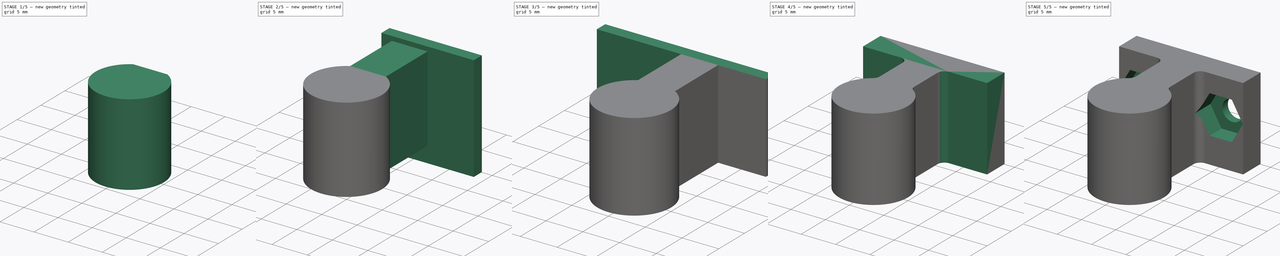
[diagram: build sequence overview — one tinted view per stage of 5, left to right]
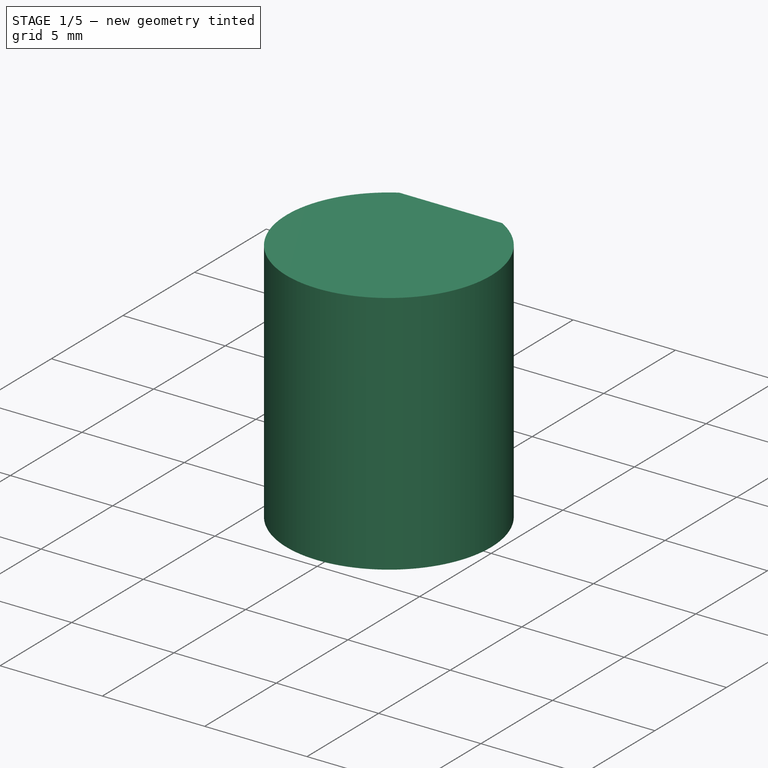
[diagram: stage 1 of 5 — iso view after this stage's code; geometry added in this stage tinted green]
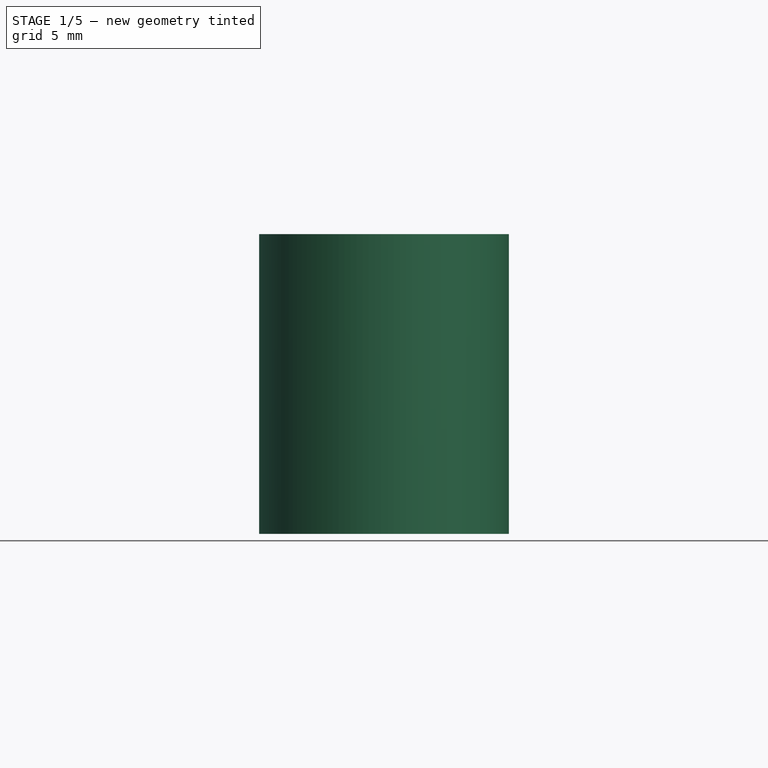
[diagram: stage 1 of 5 — front view after this stage's code; geometry added in this stage tinted green]
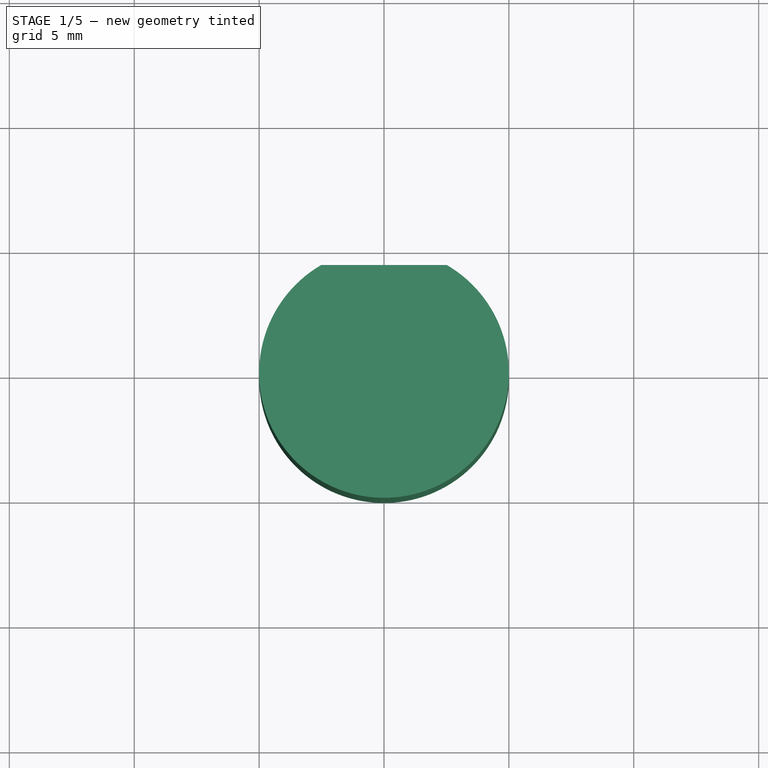
[diagram: stage 1 of 5 — top view after this stage's code; geometry added in this stage tinted green]
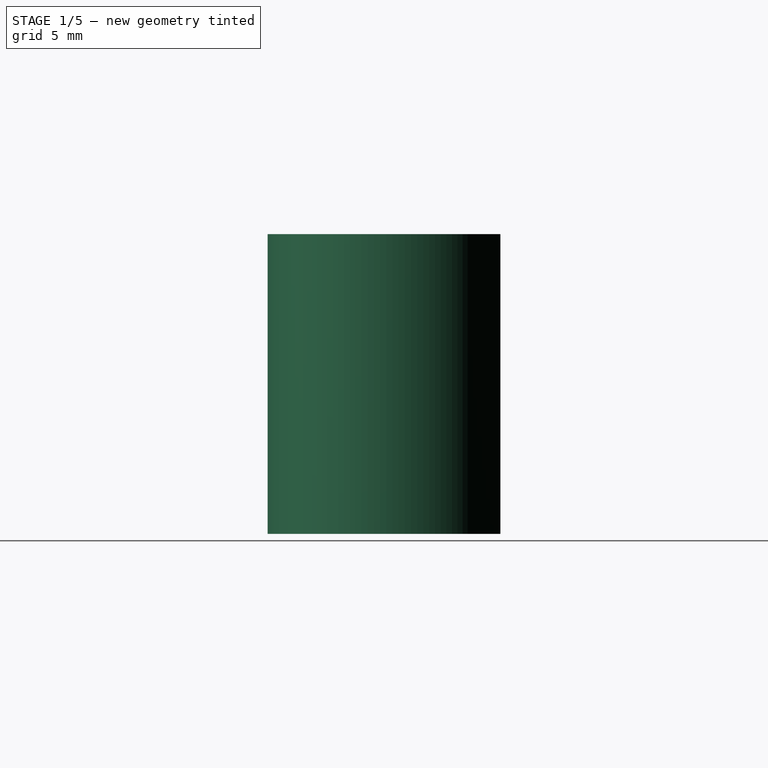
[diagram: stage 1 of 5 — right view after this stage's code; geometry added in this stage tinted green]
FCSTD DOCUMENT  (FreeCAD 2024.2R37179 (Git))
Label: handle_cap
License: All rights reserved
LicenseURL: http://en.wikipedia.org/wiki/All_rights_reserved
objects: PartDesign::Pad×7, PartDesign::Pocket×7, Sketcher::SketchObject×6, PartDesign::Fillet×1, PartDesign::Body×1
note: 37 computed .brp shape members not serialized (recipe doc carries the construction recipe); baked Part::Feature solids carry a one-line shape summary decoded from their .brp

FEATURE [Sketcher::SketchObject] Sketch001
  AttachmentSupport = -> [XY_Plane001]
  FullyConstrained = true
  MapMode = 5
  sketch-geometry (2):
    g0: Circle CenterX=0 CenterY=0 CenterZ=0 NormalX=0 NormalY=0 NormalZ=1 AngleXU=0 Radius=4.05
    g1: Circle CenterX=0 CenterY=0 CenterZ=0 NormalX=0 NormalY=0 NormalZ=1 AngleXU=0 Radius=5
  constraints (4):
    c: Coincident(g0,g-1)
    c: Diameter(g0) = 8.1
    c: Radius(g1) = 5
    c: Coincident(g1,g0)
FEATURE [PartDesign::Pad] Pad001
  Direction = (0,0,1)
  Length = 10
  Length2 = 10
  Profile = -> Sketch001
  ReferenceAxis = -> Sketch001 [N_Axis]
  Refine = true
  Suppressed = false
  Type = 0
FEATURE [Sketcher::SketchObject] Sketch002
  AttachmentSupport = -> [Pad001]
  FullyConstrained = true
  MapMode = 5
  Placement = pos=(0,0,10) rot=(0,0,1;0rad)
  sketch-geometry (1):
    g0: Circle CenterX=0 CenterY=0 CenterZ=0 NormalX=0 NormalY=0 NormalZ=1 AngleXU=0 Radius=5
  constraints (2):
    c: Radius(g0) = 5
    c: Coincident(g0,g-1)
FEATURE [PartDesign::Pad] Pad002
  BaseFeature = -> Pad001
  Direction = (0,0,1)
  Length = 2
  Length2 = 10
  Profile = -> Sketch002
  ReferenceAxis = -> Sketch002 [N_Axis]
  Refine = true
  Suppressed = false
  Type = 0
FEATURE [Sketcher::SketchObject] Sketch003
  AttachmentSupport = -> [Pad002]
  FullyConstrained = false
  MapMode = 5
  Placement = pos=(0,0,12) rot=(0,0,1;0rad)
  sketch-geometry (4):
    g0: LineSegment StartX=-5.86183 StartY=7.45466 StartZ=0 EndX=-5.86183 EndY=4.32045 EndZ=0
    g1: LineSegment StartX=-5.86183 StartY=4.32045 StartZ=0 EndX=7.29593 EndY=4.32045 EndZ=0
    g2: LineSegment StartX=7.29593 StartY=4.32045 StartZ=0 EndX=7.29593 EndY=7.45466 EndZ=0
    g3: LineSegment StartX=7.29593 StartY=7.45466 StartZ=0 EndX=-5.86183 EndY=7.45466 EndZ=0
  constraints (8):
    c: Coincident(g0,g1)
    c: Coincident(g1,g2)
    c: Coincident(g2,g3)
    c: Coincident(g3,g0)
    c: Vertical(g0)
    c: Vertical(g2)
    c: Horizontal(g1)
    c: Horizontal(g3)
FEATURE [PartDesign::Pocket] Pocket
  BaseFeature = -> Pad002
  Direction = (0,0,-1)
  Length = 16
  Length2 = 5
  Profile = -> Sketch003
  ReferenceAxis = -> Sketch003 [N_Axis]
  Refine = true
  Suppressed = false
  Type = 0
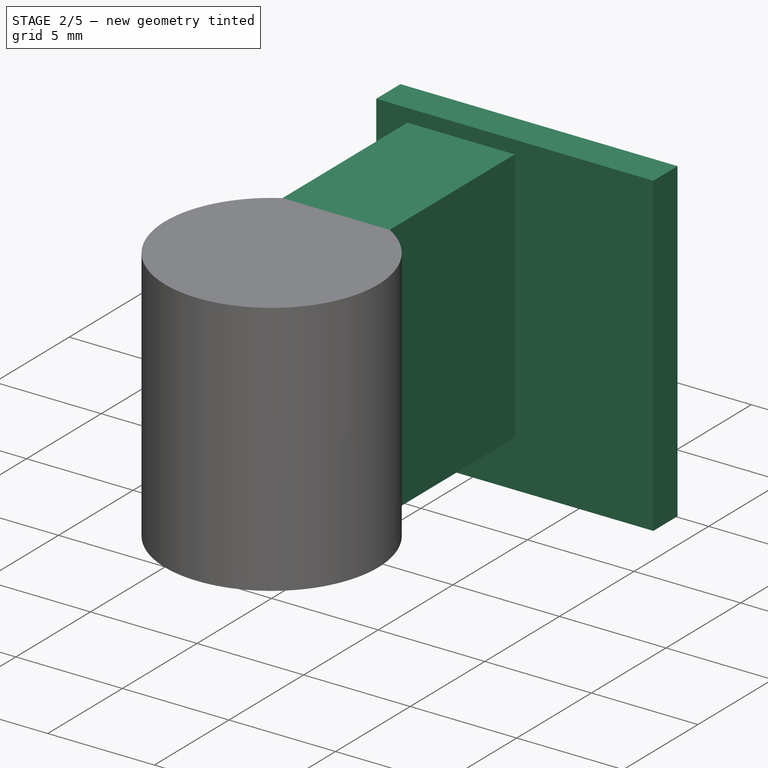
[diagram: stage 2 of 5 — iso view after this stage's code; geometry added in this stage tinted green]
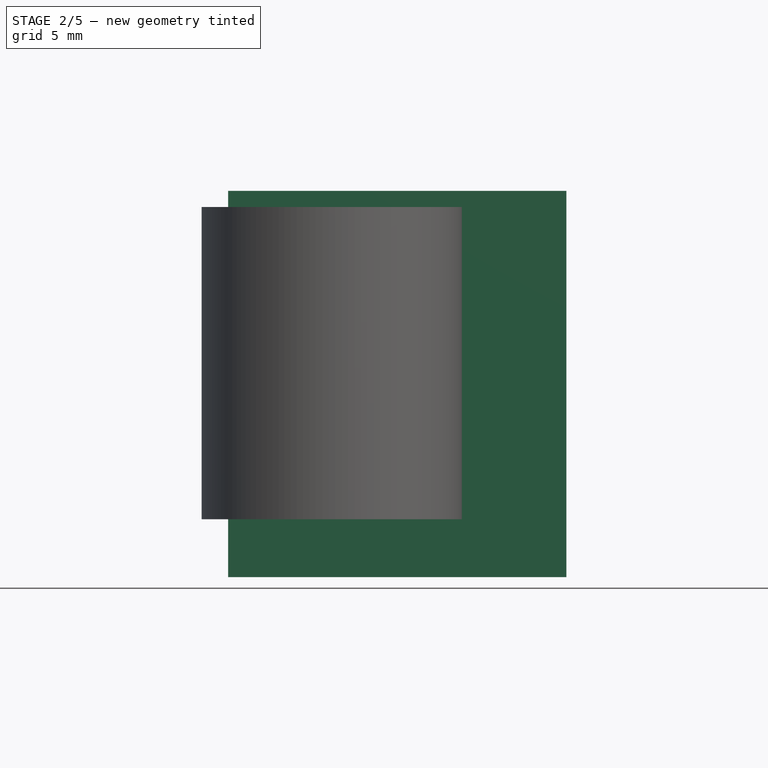
[diagram: stage 2 of 5 — front view after this stage's code; geometry added in this stage tinted green]
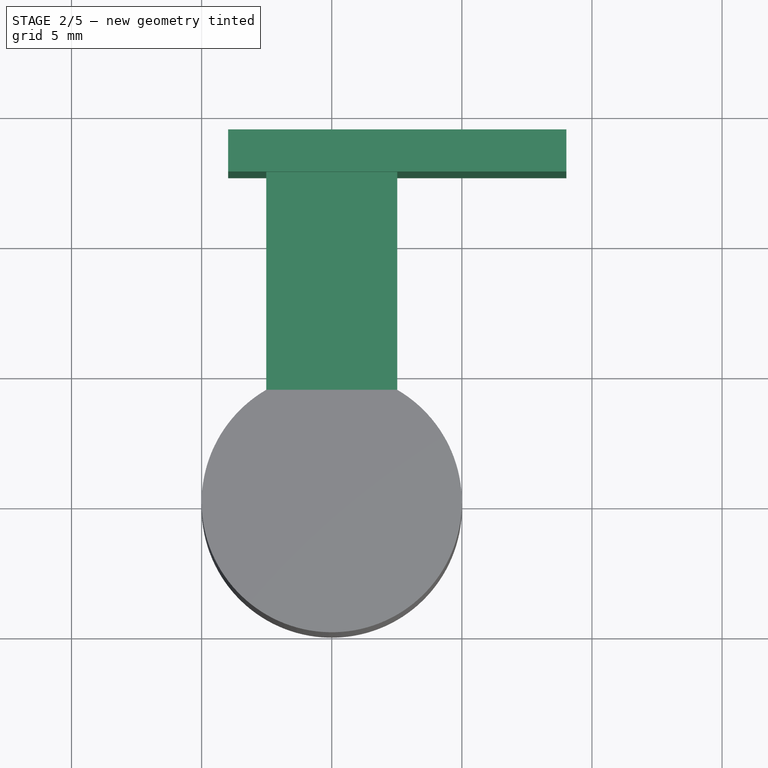
[diagram: stage 2 of 5 — top view after this stage's code; geometry added in this stage tinted green]
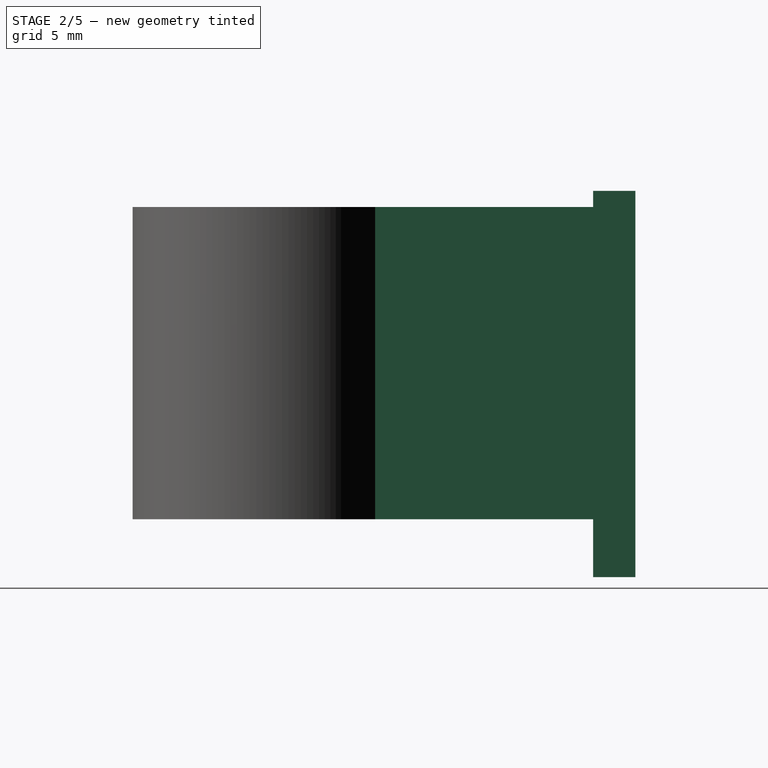
[diagram: stage 2 of 5 — right view after this stage's code; geometry added in this stage tinted green]
FEATURE [PartDesign::Pad] Pad003
  BaseFeature = -> Pocket
  Direction = (0,1,0)
  Length = 10
  Length2 = 10
  Profile = -> Pocket [Face2]
  Refine = true
  Suppressed = false
  Type = 0
FEATURE [Sketcher::SketchObject] Sketch004
  AttachmentSupport = -> [Pad003]
  FullyConstrained = false
  MapMode = 5
  Placement = pos=(2.51668,0,0) rot=(0.57735,0.57735,0.57735;2.0944rad)
  sketch-geometry (4):
    g0: LineSegment StartX=12.6981 StartY=12.6215 StartZ=0 EndX=12.6981 EndY=-2.22682 EndZ=0
    g1: LineSegment StartX=12.6981 StartY=-2.22682 StartZ=0 EndX=13.9209 EndY=-2.22682 EndZ=0
    g2: LineSegment StartX=13.9209 StartY=-2.22682 StartZ=0 EndX=13.9209 EndY=12.6215 EndZ=0
    g3: LineSegment StartX=13.9209 StartY=12.6215 StartZ=0 EndX=12.6981 EndY=12.6215 EndZ=0
  constraints (8):
    c: Coincident(g0,g1)
    c: Coincident(g1,g2)
    c: Coincident(g2,g3)
    c: Coincident(g3,g0)
    c: Vertical(g0)
    c: Vertical(g2)
    c: Horizontal(g1)
    c: Horizontal(g3)
FEATURE [PartDesign::Pad] Pad004
  BaseFeature = -> Pad003
  Direction = (1,0,0)
  Length = 13
  Length2 = 10
  Midplane = true
  Profile = -> Sketch004
  ReferenceAxis = -> Sketch004 [N_Axis]
  Refine = true
  Suppressed = false
  Type = 0
FEATURE [PartDesign::Pad] Pad005
  BaseFeature = -> Pad004
  Direction = (0,1,0)
  Length = 10
  Length2 = 10
  Profile = -> Pad004 [Face13]
  Refine = true
  Suppressed = false
  Type = 3
  UpToFace = -> Pad004 [Face18]
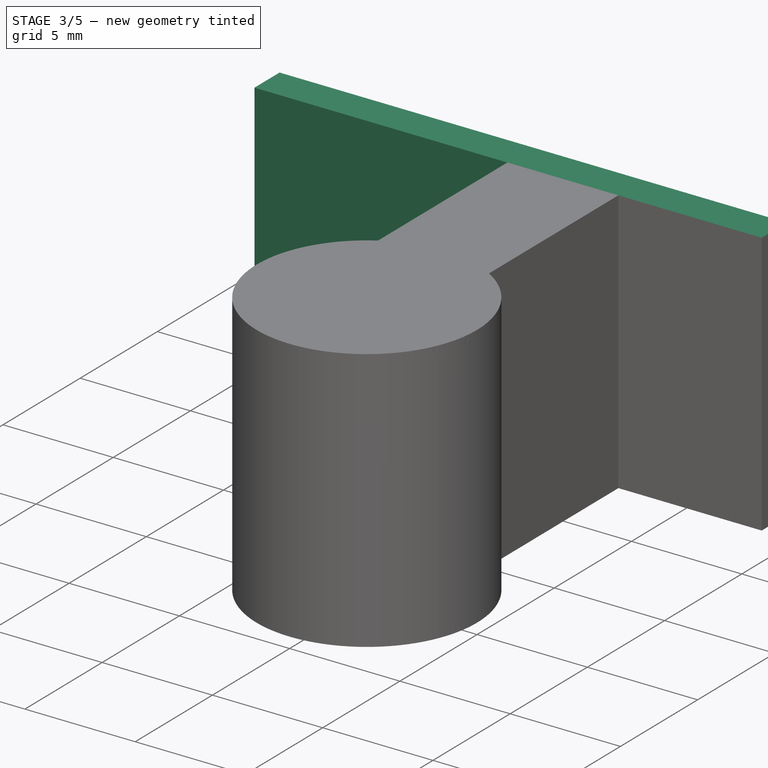
[diagram: stage 3 of 5 — iso view after this stage's code; geometry added in this stage tinted green]
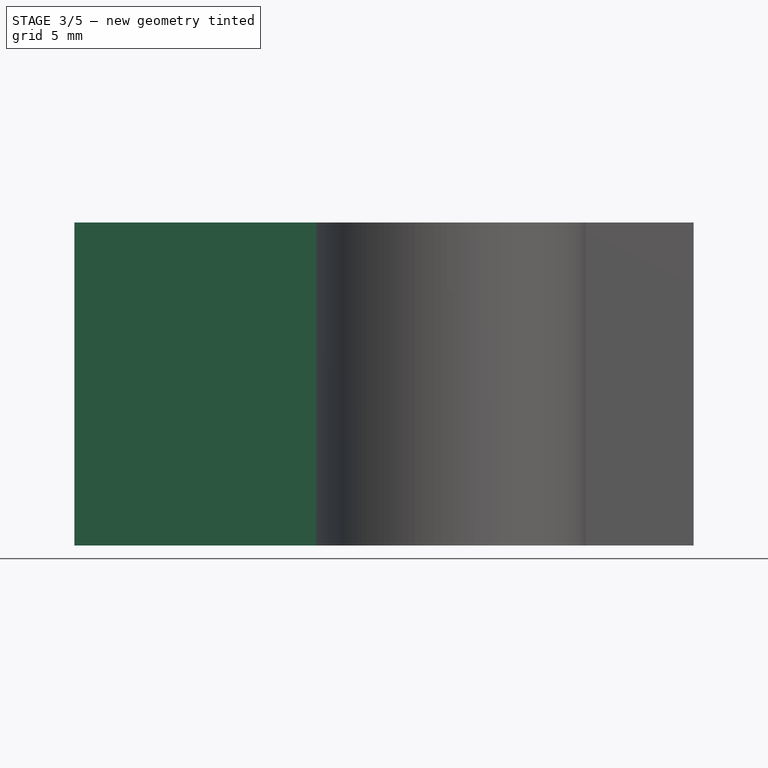
[diagram: stage 3 of 5 — front view after this stage's code; geometry added in this stage tinted green]
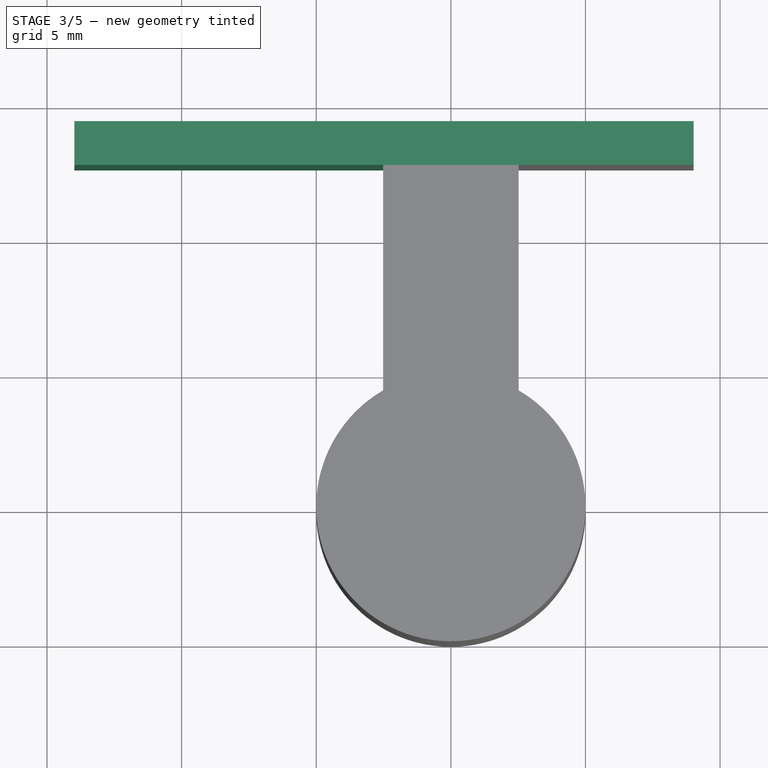
[diagram: stage 3 of 5 — top view after this stage's code; geometry added in this stage tinted green]
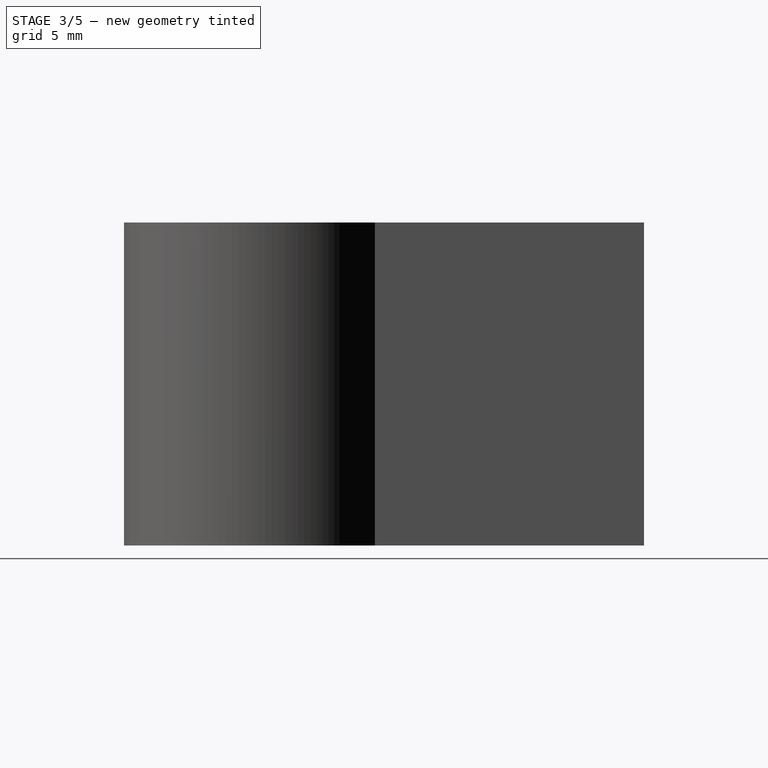
[diagram: stage 3 of 5 — right view after this stage's code; geometry added in this stage tinted green]
FEATURE [PartDesign::Pad] Pad006
  BaseFeature = -> Pad005
  Direction = (-1,0,0)
  Length = 10
  Length2 = 10
  Profile = -> Pad005 [Face10]
  Refine = true
  Suppressed = false
  Type = 0
FEATURE [PartDesign::Pocket] Pocket001
  BaseFeature = -> Pad006
  Direction = (0,0,1)
  Length = 0
  Length2 = 5
  Profile = -> Pad006 [Face12]
  Refine = true
  Suppressed = false
  Type = 3
  UpToFace = -> Pad006 [Face6]
FEATURE [PartDesign::Pocket] Pocket002
  BaseFeature = -> Pocket001
  Direction = (0,0,-1)
  Length = 0
  Length2 = 5
  Profile = -> Pocket001 [Face5]
  Refine = true
  Suppressed = false
  Type = 3
  UpToFace = -> Pocket001 [Face8]
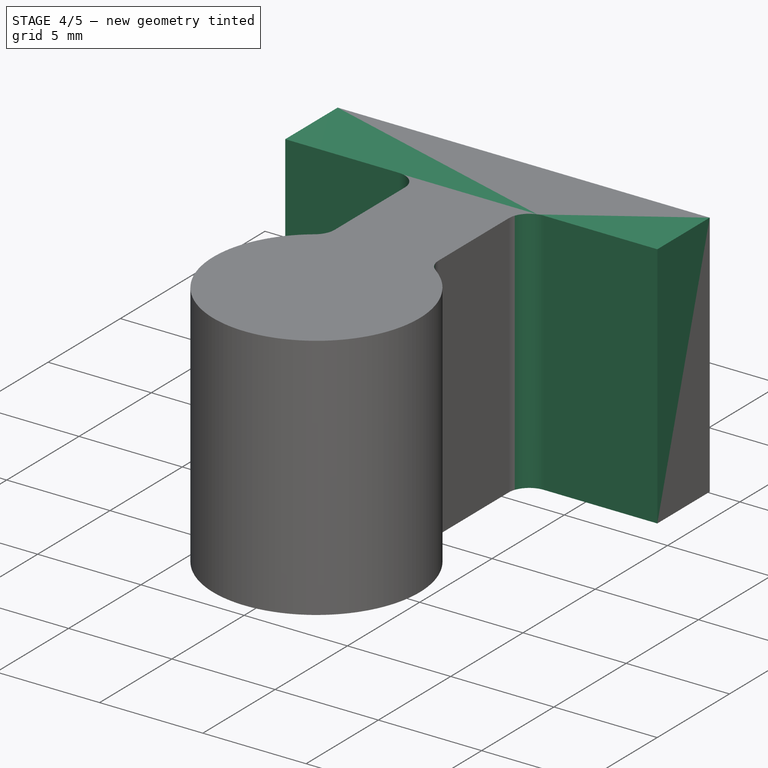
[diagram: stage 4 of 5 — iso view after this stage's code; geometry added in this stage tinted green]
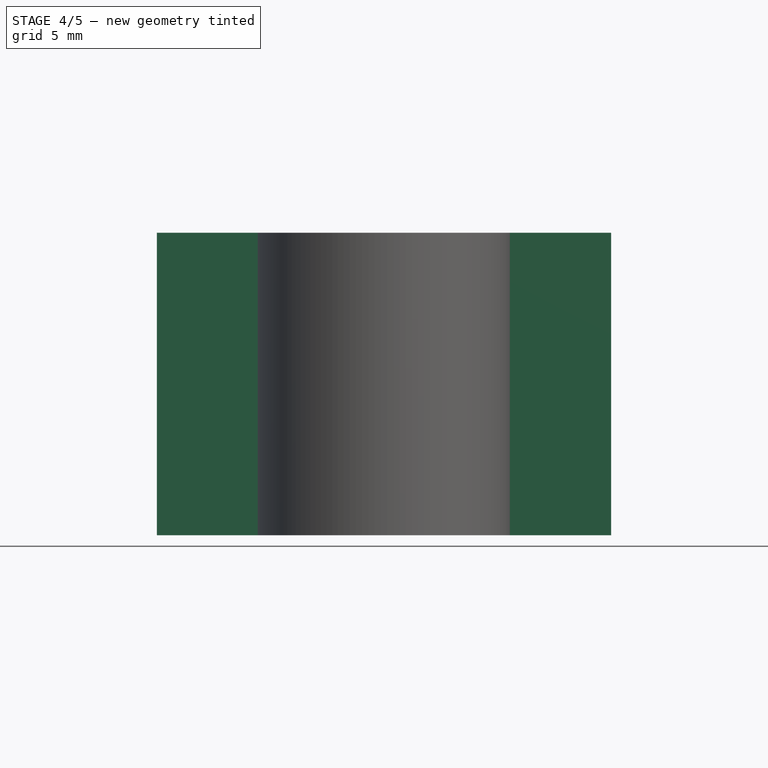
[diagram: stage 4 of 5 — front view after this stage's code; geometry added in this stage tinted green]
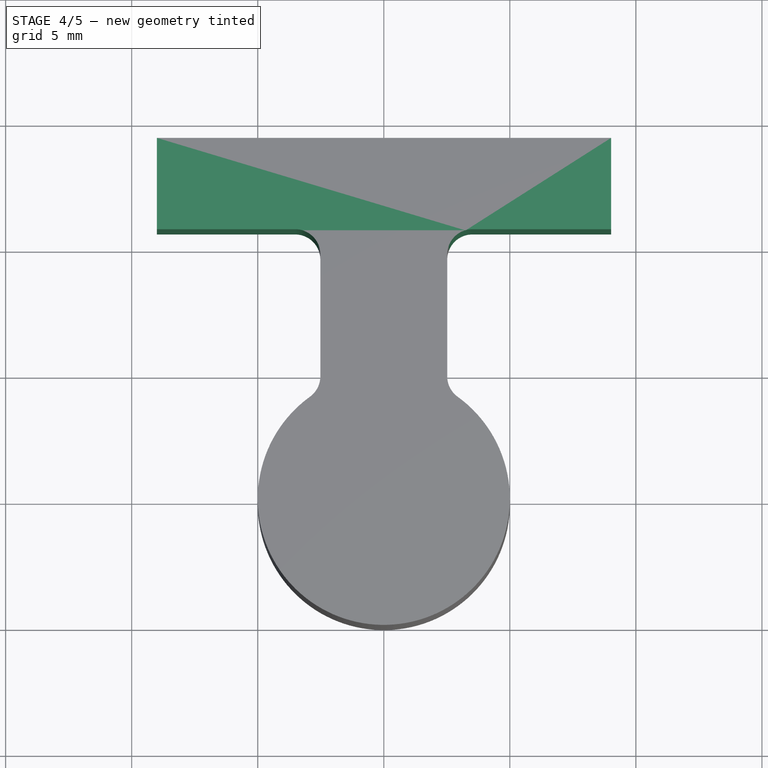
[diagram: stage 4 of 5 — top view after this stage's code; geometry added in this stage tinted green]
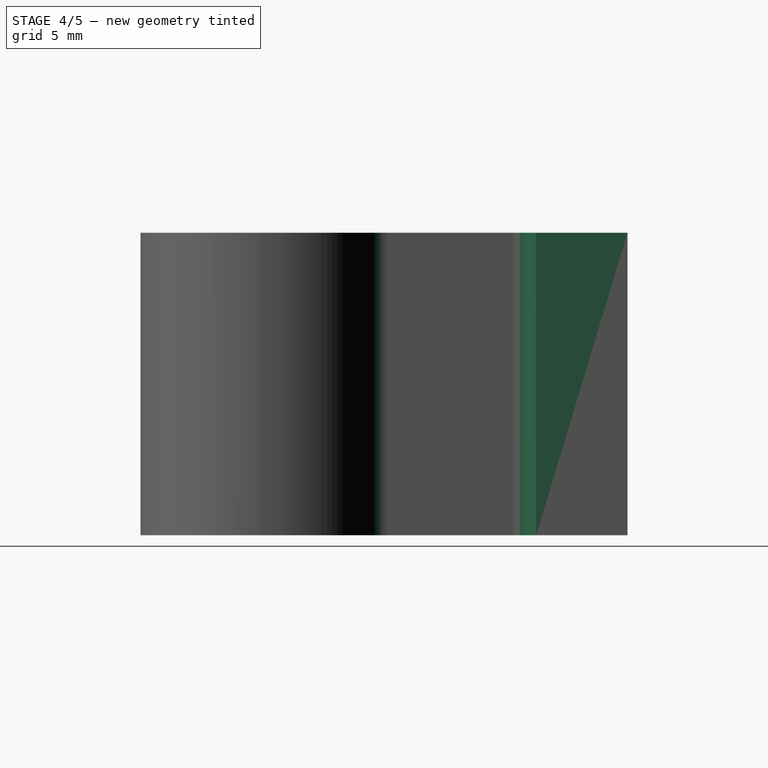
[diagram: stage 4 of 5 — right view after this stage's code; geometry added in this stage tinted green]
FEATURE [PartDesign::Pad] Pad007
  BaseFeature = -> Pocket002
  Direction = (0,-1,0)
  Length = 2
  Length2 = 10
  Profile = -> Pocket002 [Face8,Face2]
  Refine = true
  Suppressed = false
  Type = 0
FEATURE [Sketcher::SketchObject] Sketch005
  AttachmentSupport = -> [Pad007]
  FullyConstrained = false
  MapMode = 5
  Placement = pos=(0,14.3205,0) rot=(0,0.707107,0.707107;3.14159rad)
  sketch-geometry (5):
    g0: LineSegment StartX=9 StartY=0 StartZ=0 EndX=9 EndY=15.0317 EndZ=0
    g1: LineSegment StartX=9 StartY=15.0317 StartZ=0 EndX=19.0772 EndY=11.8494 EndZ=0
    g2: LineSegment StartX=19.0772 StartY=11.8494 StartZ=0 EndX=16.9103 EndY=0.062037 EndZ=0
    g3: LineSegment StartX=9 StartY=0 StartZ=0 EndX=14.5098 EndY=-3.68503 EndZ=0
    g4: LineSegment StartX=14.5098 StartY=-3.68503 StartZ=0 EndX=16.9103 EndY=0.062037 EndZ=0
  constraints (6):
    c: Vertical(g0)
    c: Coincident(g0,g1)
    c: Coincident(g1,g2)
    c: Coincident(g0,g3)
    c: Coincident(g3,g4)
    c: Coincident(g4,g2)
FEATURE [PartDesign::Pocket] Pocket003
  BaseFeature = -> Pad007
  Direction = (0,-1,2e-16)
  Length = 5
  Length2 = 5
  Profile = -> Sketch005
  ReferenceAxis = -> Sketch005 [N_Axis]
  Refine = true
  Suppressed = false
  Type = 0
FEATURE [PartDesign::Fillet] Fillet
  Base = -> Pocket003 [Edge26,Edge24,Edge5,Edge1]
  BaseFeature = -> Pocket003
  Radius = 1
  Refine = true
  SupportTransform = false
  Suppressed = false
  UseAllEdges = false
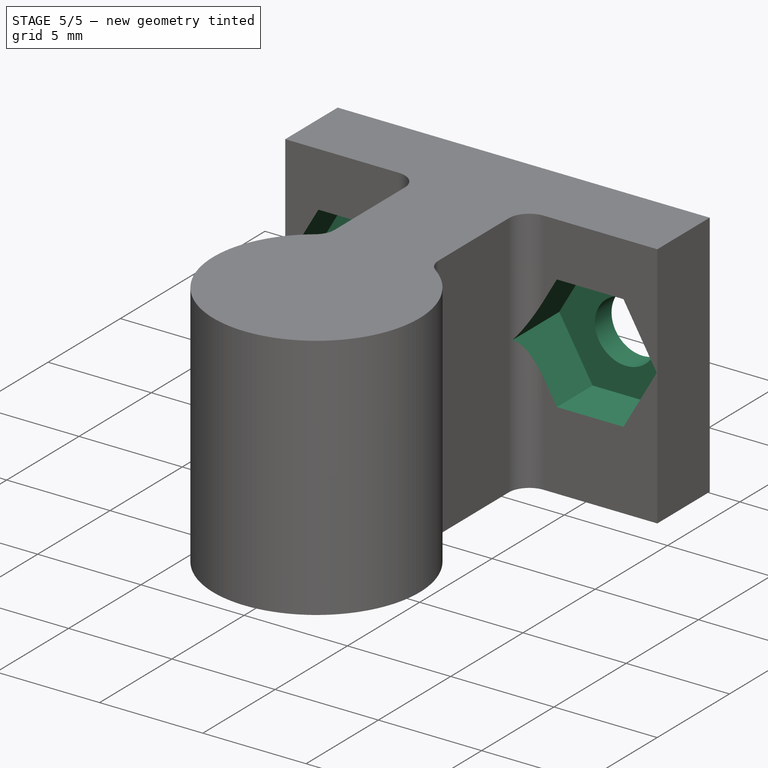
[diagram: stage 5 of 5 — iso view after this stage's code; geometry added in this stage tinted green]
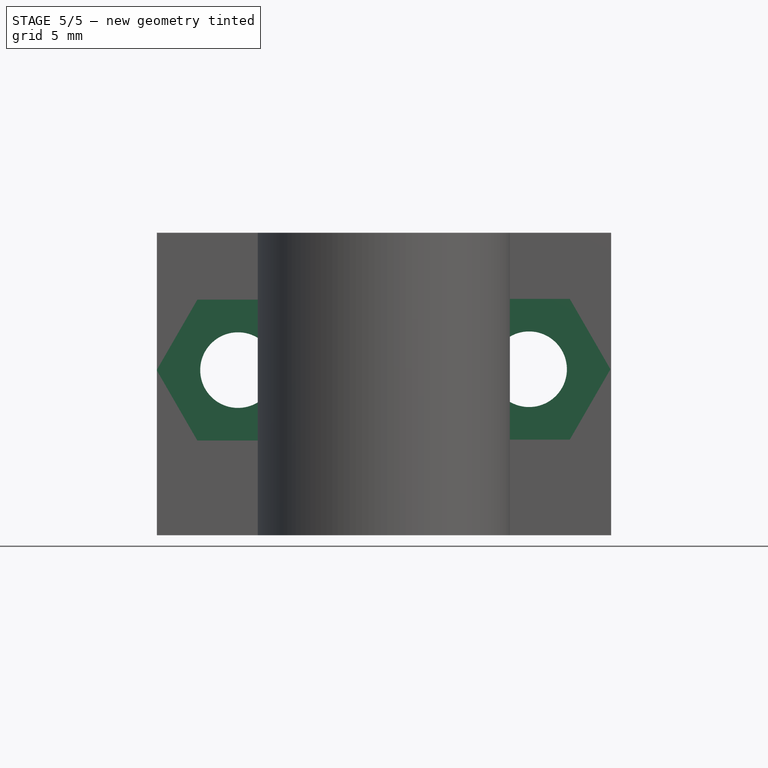
[diagram: stage 5 of 5 — front view after this stage's code; geometry added in this stage tinted green]
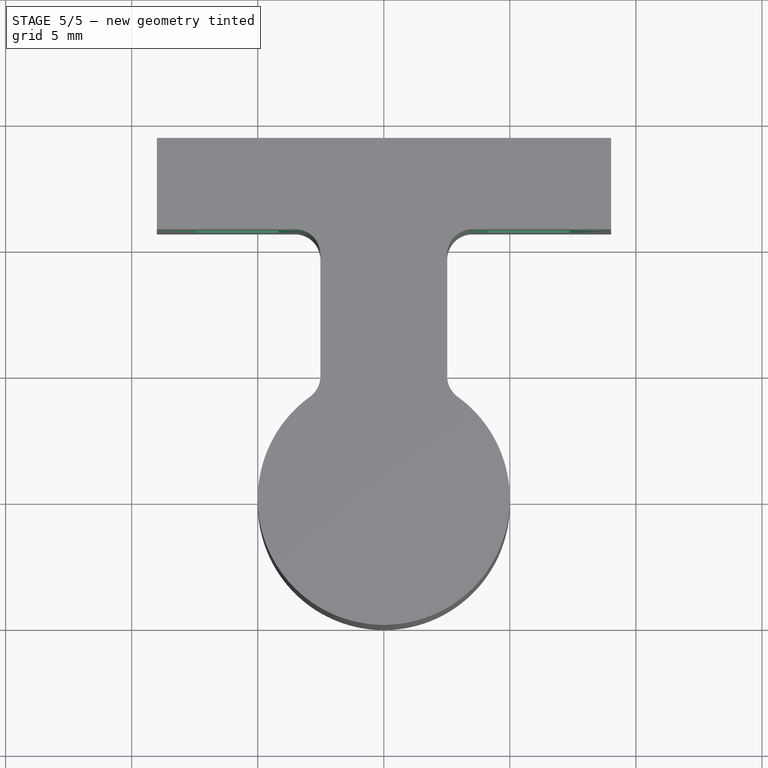
[diagram: stage 5 of 5 — top view after this stage's code; geometry added in this stage tinted green]
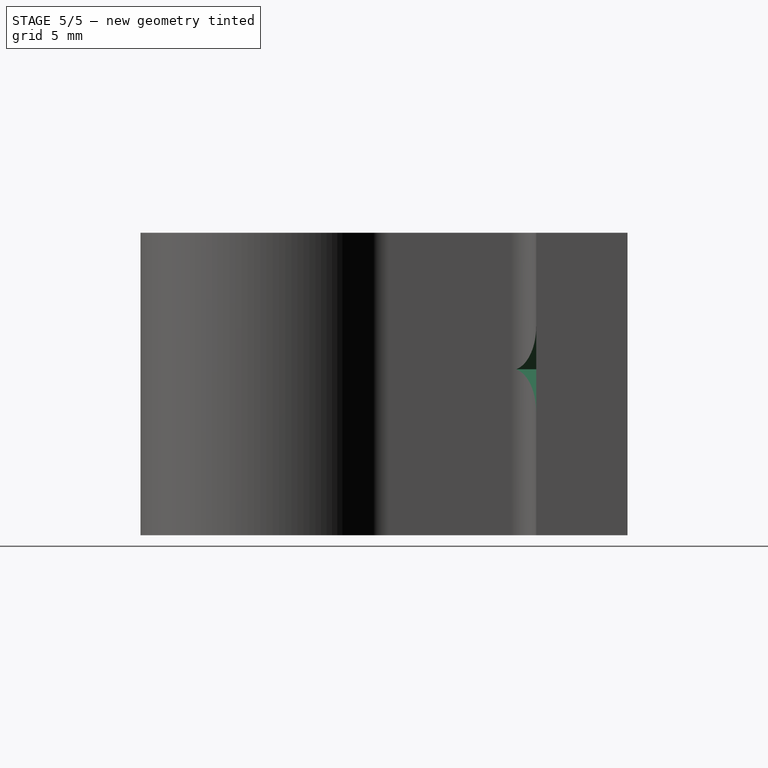
[diagram: stage 5 of 5 — right view after this stage's code; geometry added in this stage tinted green]
FEATURE [Sketcher::SketchObject] Sketch006
  AttachmentOffset = pos=(0,0,-3.65) rot=(0,0,1;0rad)
  AttachmentSupport = -> [Fillet]
  FullyConstrained = false
  MapMode = 5
  Placement = pos=(0,10.6705,8e-16) rot=(0,0.707107,0.707107;3.14159rad)
  sketch-geometry (16):
    g0: LineSegment StartX=-2.53754 StartY=6.58544 StartZ=0 EndX=-4.15054 EndY=9.37923 EndZ=0
    g1: LineSegment StartX=-4.15054 StartY=9.37923 StartZ=0 EndX=-7.37654 EndY=9.37923 EndZ=0
    g2: LineSegment StartX=-7.37654 StartY=9.37923 StartZ=0 EndX=-8.98954 EndY=6.58544 EndZ=0
    g3: LineSegment StartX=-8.98954 StartY=6.58544 StartZ=0 EndX=-7.37654 EndY=3.79164 EndZ=0
    g4: LineSegment StartX=-7.37654 StartY=3.79164 StartZ=0 EndX=-4.15054 EndY=3.79164 EndZ=0
    g5: LineSegment StartX=-4.15054 StartY=3.79164 StartZ=0 EndX=-2.53754 EndY=6.58544 EndZ=0
    g6: Circle CenterX=-5.76354 CenterY=6.58544 CenterZ=0 NormalX=0 NormalY=0 NormalZ=1 AngleXU=0 Radius=3.226
    g7: LineSegment StartX=9.00876 StartY=6.5508 StartZ=0 EndX=7.39576 EndY=9.3446 EndZ=0
    g8: LineSegment StartX=7.39576 StartY=9.3446 StartZ=0 EndX=4.16976 EndY=9.3446 EndZ=0
    g9: LineSegment StartX=4.16976 StartY=9.3446 StartZ=0 EndX=2.55676 EndY=6.5508 EndZ=0
    g10: LineSegment StartX=2.55676 StartY=6.5508 StartZ=0 EndX=4.16976 EndY=3.757 EndZ=0
    g11: LineSegment StartX=4.16976 StartY=3.757 StartZ=0 EndX=7.39576 EndY=3.757 EndZ=0
    g12: LineSegment StartX=7.39576 StartY=3.757 StartZ=0 EndX=9.00876 EndY=6.5508 EndZ=0
    g13: Circle CenterX=5.78276 CenterY=6.5508 CenterZ=0 NormalX=0 NormalY=0 NormalZ=1 AngleXU=0 Radius=3.226
    g14: Circle CenterX=-5.76354 CenterY=6.58544 CenterZ=0 NormalX=0 NormalY=0 NormalZ=1 AngleXU=0 Radius=1.5
    g15: Circle CenterX=5.78276 CenterY=6.5508 CenterZ=0 NormalX=0 NormalY=0 NormalZ=1 AngleXU=0 Radius=1.5
  constraints (32):
    c: Coincident(g0,g1)
    c: Coincident(g1,g2)
    c: Coincident(g2,g3)
    c: Coincident(g3,g4)
    c: Coincident(g4,g5)
    c: Coincident(g5,g0)
    c: Equal(g0, g1-g5) x5
    c: PointOnObject(g0,g6)
    c: PointOnObject(g1,g6)
    c: PointOnObject(g2,g6)
    c: PointOnObject(g3,g6)
    c: PointOnObject(g4,g6)
    c: PointOnObject(g5,g6)
    c: Radius(g6) = 3.226
    c: Coincident(g7,g8)
    c: Coincident(g8,g9)
    c: Coincident(g9,g10)
    c: Coincident(g10,g11)
    c: Coincident(g11,g12)
    c: Coincident(g12,g7)
    c: Equal(g7, g8-g12) x5
    c: PointOnObject(g7,g13)
    c: PointOnObject(g8,g13)
    c: PointOnObject(g9,g13)
    c: PointOnObject(g10,g13)
    c: PointOnObject(g11,g13)
    c: PointOnObject(g12,g13)
    c: Radius(g13) = 3.226
    c: Radius(g14) = 1.5
    c: Coincident(g14,g6)
    c: Radius(g15) = 1.5
    c: Coincident(g15,g13)
FEATURE [PartDesign::Pocket] Pocket004
  BaseFeature = -> Fillet
  Direction = (0,-1,2e-16)
  Length = 2.5
  Length2 = 5
  Profile = -> Sketch006
  ReferenceAxis = -> Sketch006 [N_Axis]
  Refine = true
  Reversed = true
  Suppressed = false
  Type = 0
FEATURE [PartDesign::Pocket] Pocket005
  BaseFeature = -> Pocket004
  Direction = (0,1,0)
  Length = 5
  Length2 = 5
  Profile = -> Pocket004 [Face35,Face37]
  Refine = true
  Suppressed = false
  Type = 0
FEATURE [PartDesign::Pocket] Pocket006
  BaseFeature = -> Pocket005
  Direction = (0,1,-3e-16)
  Length = 5
  Length2 = 5
  Profile = -> Pocket005 [Face35,Face21]
  Refine = true
  Reversed = true
  Suppressed = false
  Type = 0
FEATURE [PartDesign::Body] Body001  label="Mount"
  Group = -> [Sketch001,Pad001,Sketch002,Pad002,Sketch003,Pocket,Pad003,Sketch004,Pad004,Pad005,Pad006,Pocket001,Pocket002,Pad007,Sketch005,Pocket003,Fillet,Sketch006,Pocket004,Pocket005,Pocket006]
  Origin = -> Origin001
  Tip = -> Pocket006
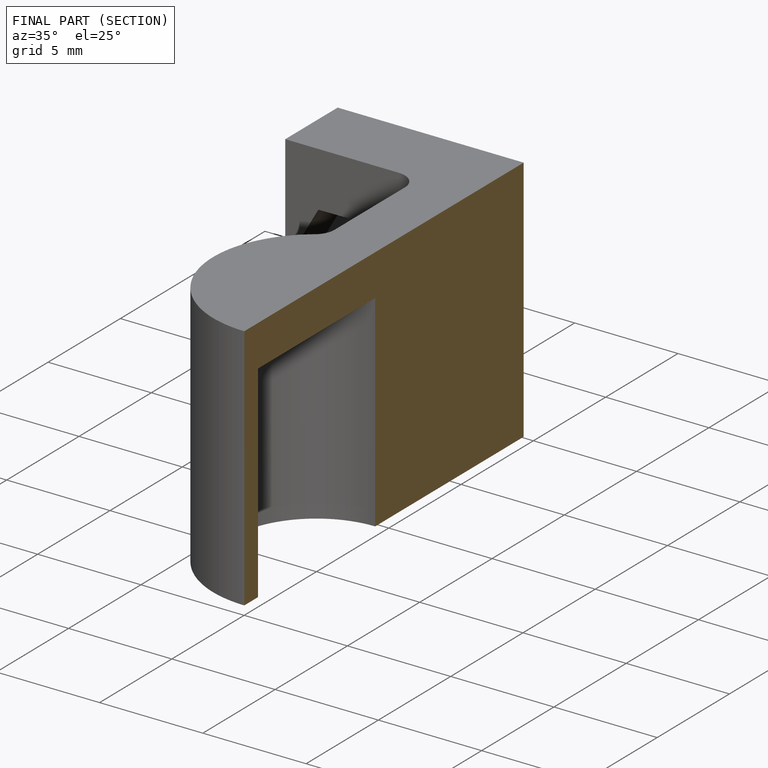
[diagram: finished part — half-section view (interior)]
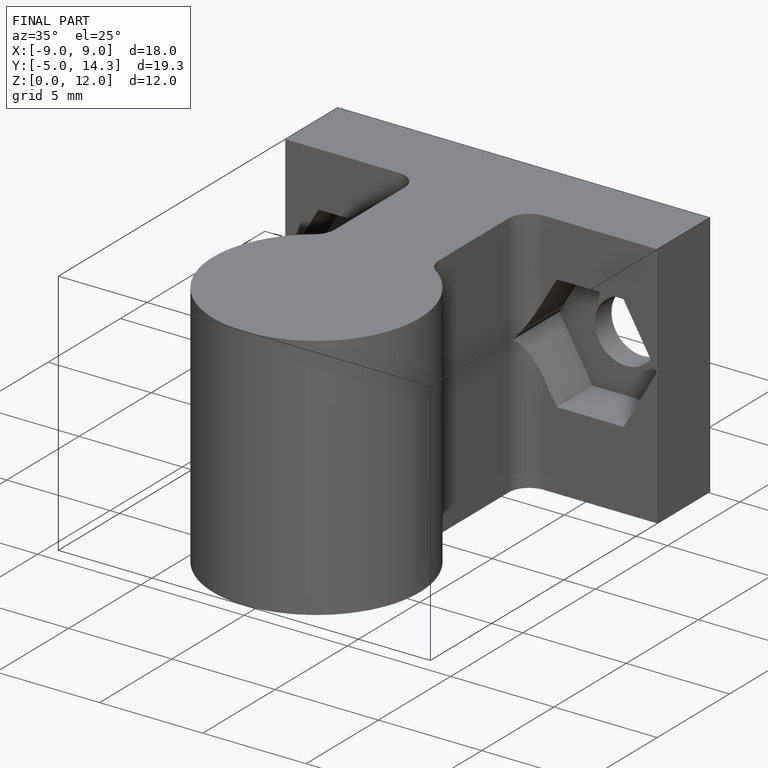
[diagram: finished part — iso view with bounding-box wireframe]
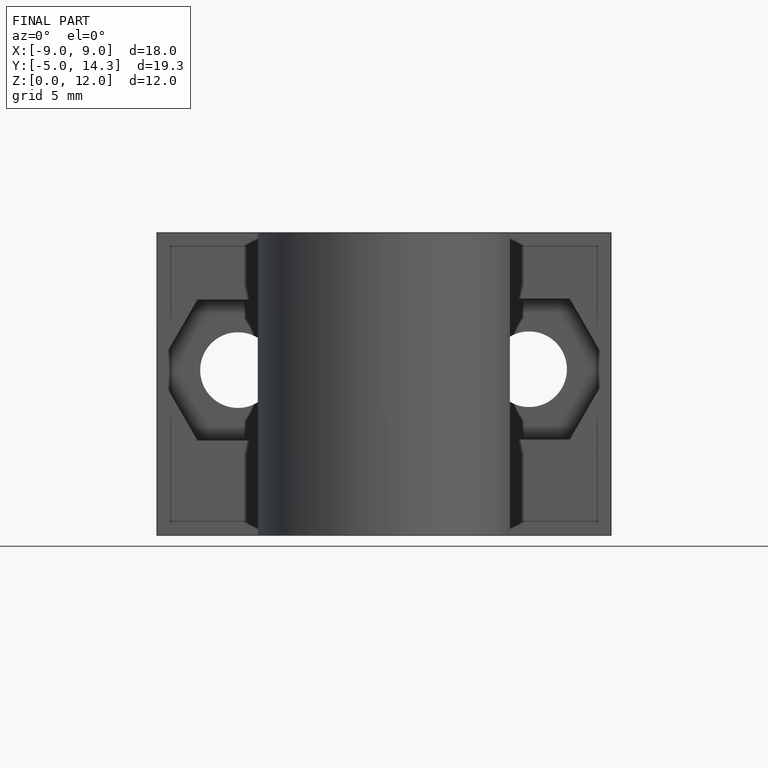
[diagram: finished part — front view with bounding-box wireframe]
